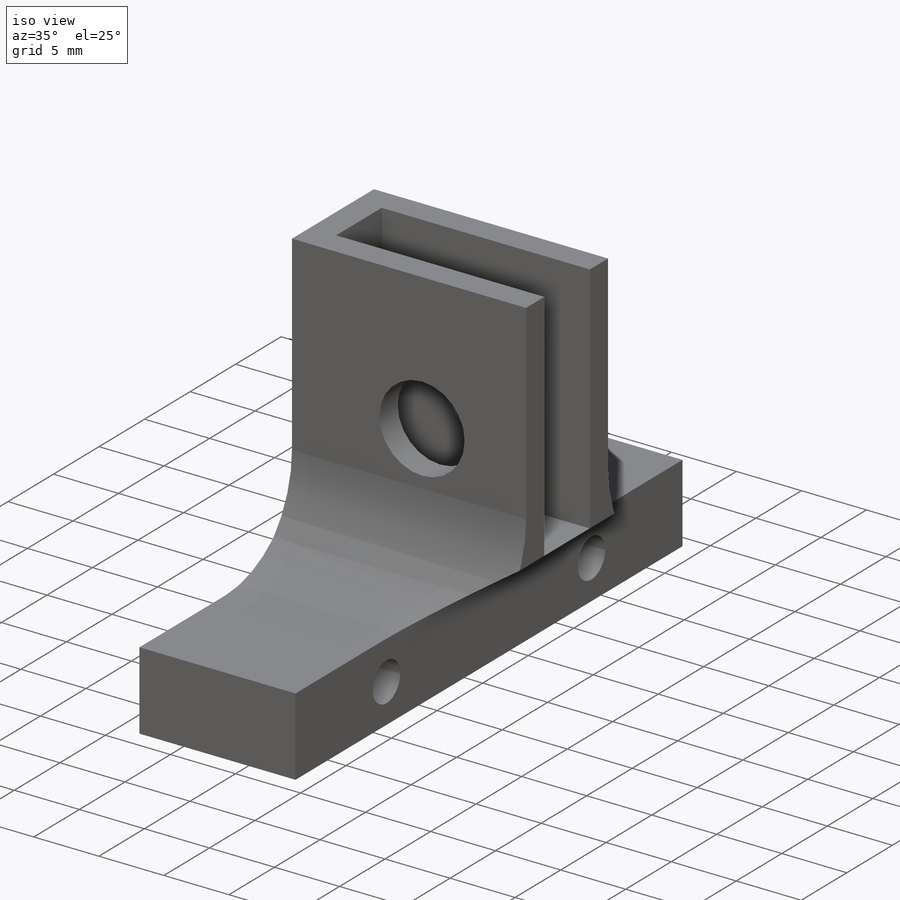
[diagram: iso view]
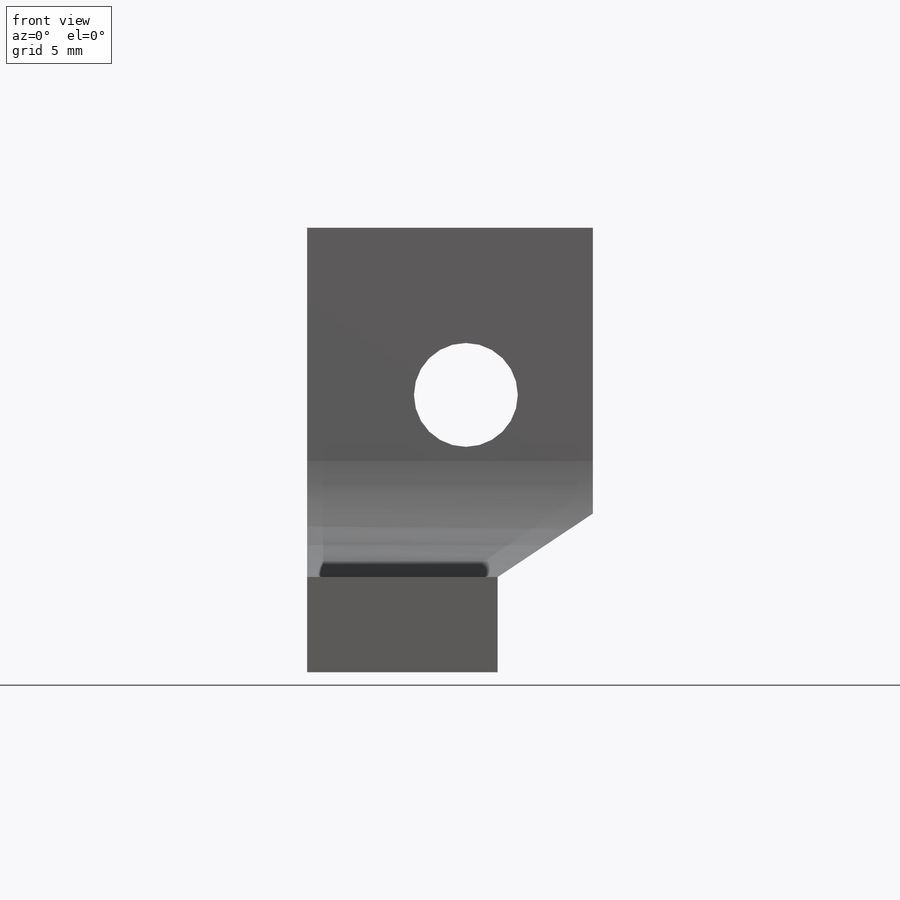
[diagram: front view]
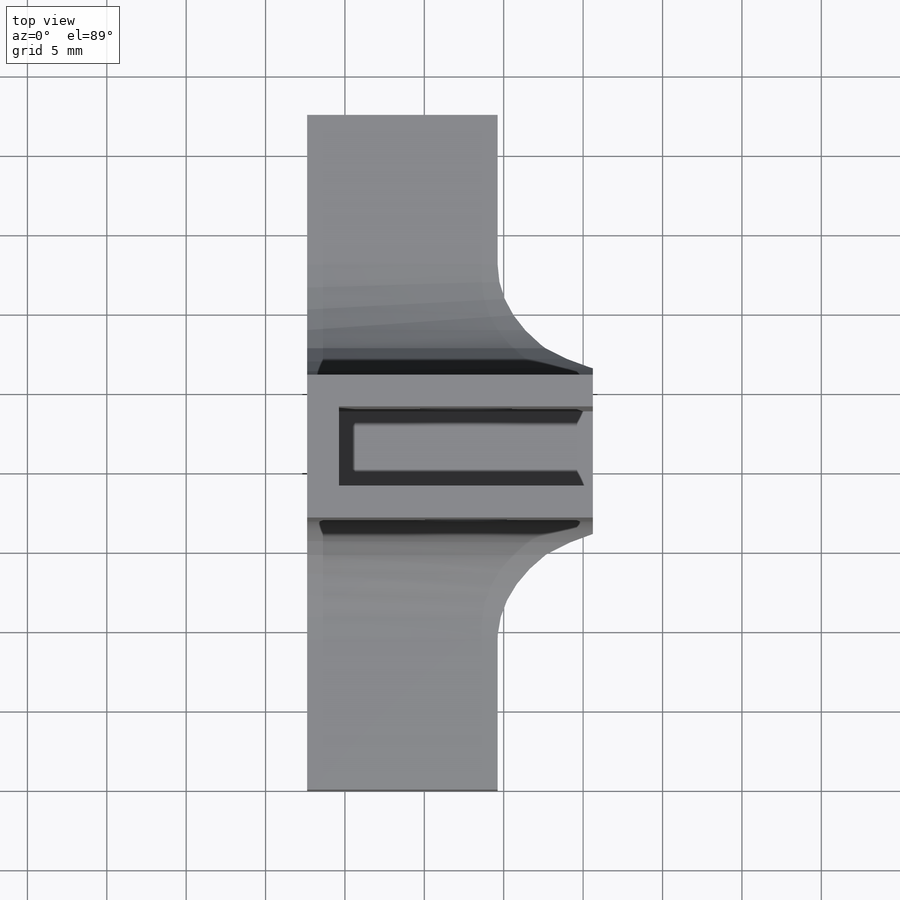
[diagram: top view]
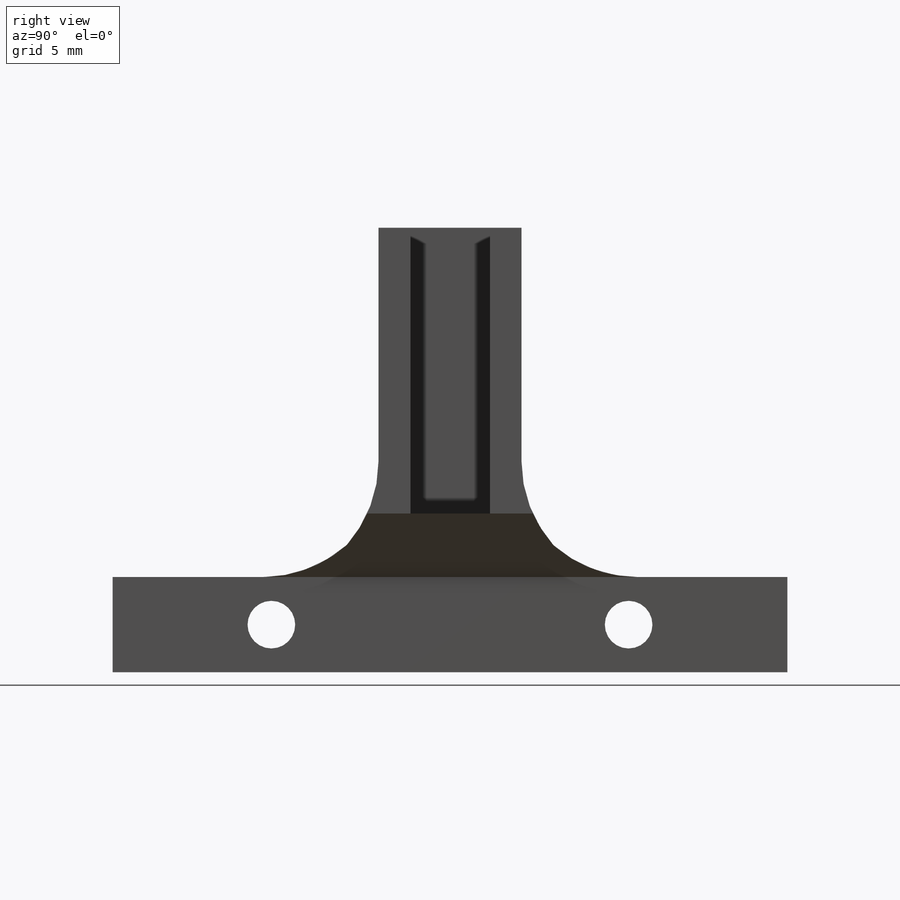
[diagram: right view]
SOLIDWORKS PART (.sldprt)
format: sldprt  version: not decoded by parser v0  size: 295,936 bytes
history: native  units: mm
features: sketch x7, plane x3, cut_extrude x3, extrude x2, material x1, hole x1, fillet x1 (+9 scaffold rows collapsed)
feature tree (27):
  scaffold x9  (default folders/planes/origin — collapsed)
  material  "Matériau <non spécifié>"
  plane  "Plan de face"
  plane  "Plan de dessus"
  plane  "Plan de droite"
  sketch  "Esquisse1"  dims[c1.D1=40.0mm c1.D2=4.0mm c1.D3=14.0mm c1.D4=6.0mm c1.D5=12.0mm c1.D6=6.0mm c1.D7=4.0mm c2.D1=14.0mm]
  extrude  "Boss.-Extru.1"  Depth=42.5mm
  hole  "Dégagement M31"  Diameter=3mm Depth=26mm
  sketch  "Esquisse4"  dims[D1=10.0mm D2=10.0mm]
  sketch  "Esquisse5"  dims[hole-wizard template sketch: 60 standard entries collapsed; hole parameters kept: c18.Profondeur du perçage jusqu'au prochain=26.0mm]
  sketch  "Esquisse6"  dims[c1.D1=~7.752756mm c1.D2=~15.796136mm c2.D1=16.0mm c2.D2=5.0mm c2.D3=18.75mm c2.D4=~28.959839mm c3.D3=2.0mm]
  extrude  "Boss.-Extru.2"  Depth=18mm
  sketch  "Esquisse7"  dims[D1=6.54mm D2=4.2mm D3=8.0mm]
  cut_extrude  "Enlèv. mat.-Extru.1"  [1 undecoded]
  sketch  "Esquisse8"  dims[D1=~7.211103mm]
  cut_extrude  "Enlèv. mat.-Extru.2"  [1 undecoded]
  sketch  "Esquisse9"  dims[c1.D1=~4.284615mm c2.D1=45.0deg c2.D2=4.0mm c3.D2=45.0deg]
  cut_extrude  "Enlèv. mat.-Extru.3"  [1 undecoded]
  fillet  "Congé4"  Radius=8mm
decode coverage: 11 of 14 modeling features carry decoded parameters
note: ~ marks probable driven/reference dimensions
note: 3 parameter values undecoded
summary: no parameter record found for 3 features
note: suppression state not decoded; provenance and decode notes live in map.json
